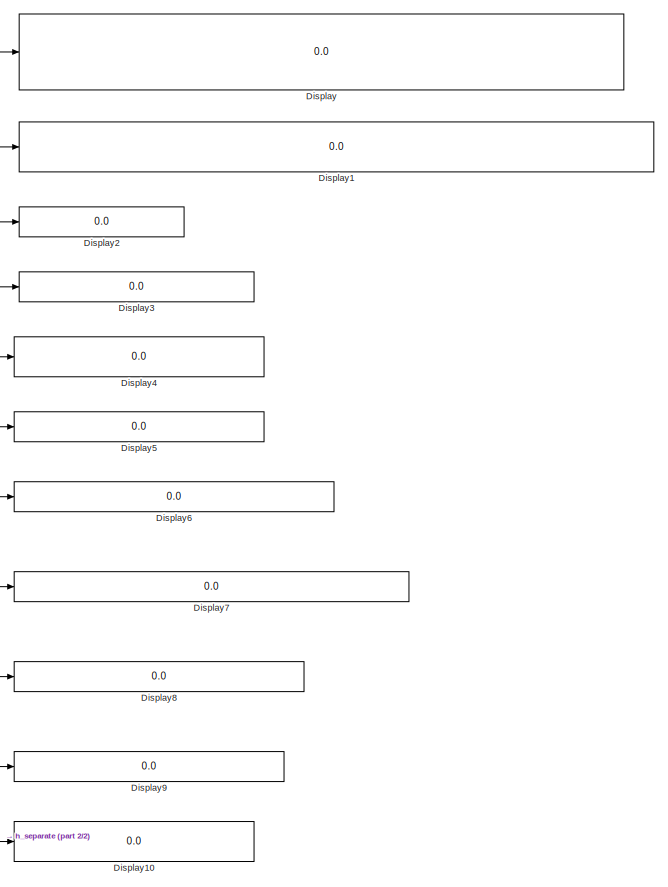
[diagram: root canvas - part 1/2, top right region]
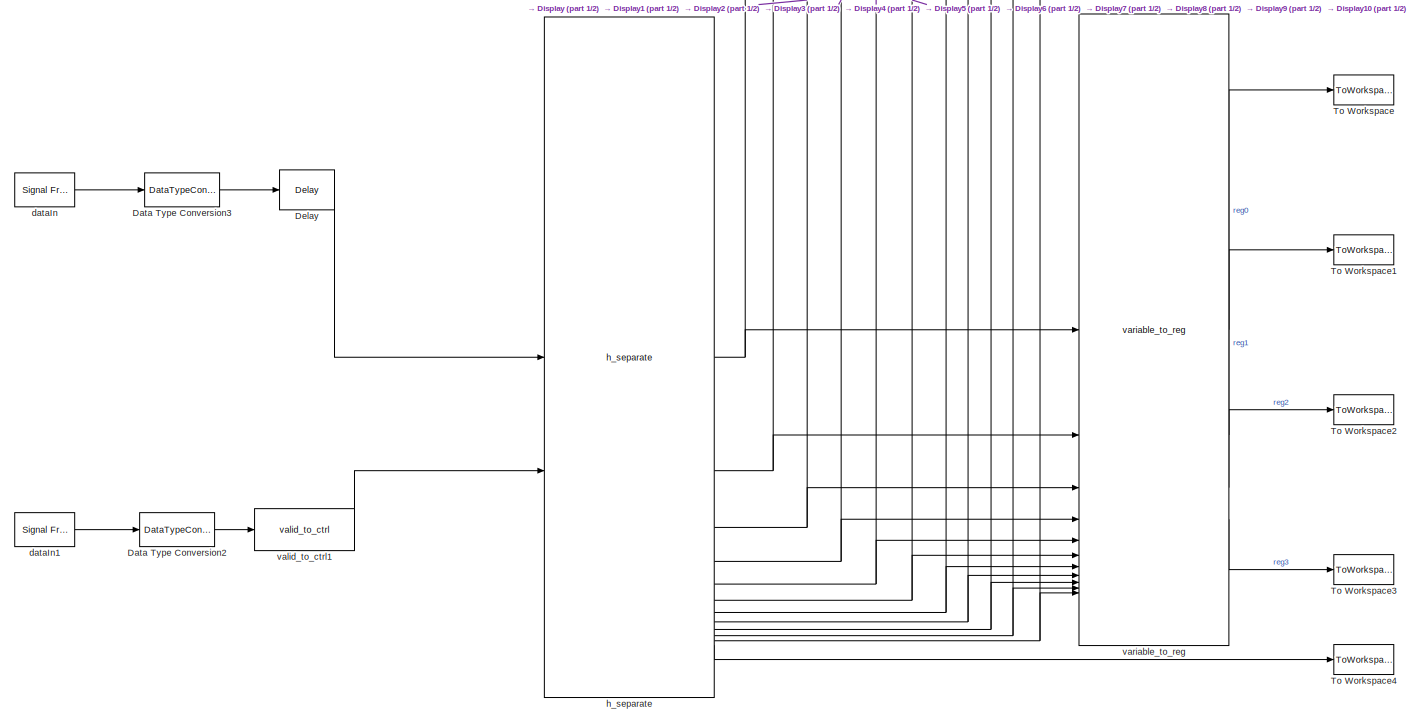
[diagram: root canvas - part 2/2, full width, bottom band]
MODEL slx_5e4bed5eb5f7
KIND model
CONFIG AbsTol = auto
CONFIG EnableMultiTasking = off
CONFIG FixedStep = auto
CONFIG MaxStep = auto
CONFIG MinStep = auto
CONFIG RelTol = 1e-3
CONFIG SampleTimeConstraint = Unconstrained
CONFIG SolverName = VariableStepAuto
CONFIG StartTime = 0.0
CONFIG StopTime = stopTime
BLOCK [DataTypeConversion] Data Type Conversion2
  OutDataTypeStr = boolean
  RndMeth = Floor
  SaturateOnIntegerOverflow = off
BLOCK [DataTypeConversion] Data Type Conversion3
  OutDataTypeStr = boolean
  RndMeth = Floor
  SaturateOnIntegerOverflow = off
BLOCK [Delay] Delay
  DelayLength = 1
  InitialCondition = 0
  InputPortMap = u0
  UseCircularBuffer = on
  UserDataPersistent = on
BLOCK [Display] Display
  Decimation = 1
BLOCK [Display] Display1
  Decimation = 1
BLOCK [Display] Display10
  Decimation = 1
BLOCK [Display] Display2
  Decimation = 1
BLOCK [Display] Display3
  Decimation = 1
BLOCK [Display] Display4
  Decimation = 1
BLOCK [Display] Display5
  Decimation = 1
BLOCK [Display] Display6
  Decimation = 1
BLOCK [Display] Display7
  Decimation = 1
BLOCK [Display] Display8
  Decimation = 1
BLOCK [Display] Display9
  Decimation = 1
BLOCK [ToWorkspace] To Workspace
  MaxDataPoints = inf
  SampleTime = 4/CONST.fPHY
  Save2DSignal = 2-D array (concatenate along first dimension)
  VariableName = reg0Out
BLOCK [ToWorkspace] To Workspace1
  MaxDataPoints = inf
  SampleTime = 4/CONST.fPHY
  Save2DSignal = 2-D array (concatenate along first dimension)
  VariableName = reg1Out
BLOCK [ToWorkspace] To Workspace2
  MaxDataPoints = inf
  SampleTime = 4/CONST.fPHY
  Save2DSignal = 2-D array (concatenate along first dimension)
  VariableName = reg2Out
BLOCK [ToWorkspace] To Workspace3
  MaxDataPoints = inf
  SampleTime = 4/CONST.fPHY
  Save2DSignal = 2-D array (concatenate along first dimension)
  VariableName = reg3Out
BLOCK [ToWorkspace] To Workspace4
  MaxDataPoints = inf
  SampleTime = 4/CONST.fPHY
  Save2DSignal = 2-D array (concatenate along first dimension)
  VariableName = endOut
BLOCK [Reference] dataIn  REF=dspsrcs4/Signal From
Workspace
  SourceBlock = dspsrcs4/Signal From\nWorkspace
  SourceType = Signal From Workspace
BLOCK [Reference] dataIn1  REF=dspsrcs4/Signal From
Workspace
  SourceBlock = dspsrcs4/Signal From\nWorkspace
  SourceType = Signal From Workspace
BLOCK [Reference] h_separate  REF=HDL_ieee_8021513/h_separate
  SourceBlock = HDL_ieee_8021513/h_separate
  SourceProductName = HDL IEEE 8021513
  SourceType = SubSystem
BLOCK [Reference] valid_to_ctrl1  REF=HDL_ieee_8021513/valid_to_ctrl
  SourceBlock = HDL_ieee_8021513/valid_to_ctrl
  SourceProductName = HDL IEEE 8021513
  SourceType = SubSystem
BLOCK [Reference] variable_to_reg  REF=HDL_ieee_8021513/variable_to_reg
  SourceBlock = HDL_ieee_8021513/variable_to_reg
  SourceProductName = HDL IEEE 8021513
  SourceType = SubSystem
LINE Data Type Conversion2:1 -> valid_to_ctrl1:1
LINE Data Type Conversion3:1 -> Delay:1
LINE Delay:1 -> h_separate:1
LINE dataIn1:1 -> Data Type Conversion2:1
LINE dataIn:1 -> Data Type Conversion3:1
NET h_separate:1 -> Display:1, variable_to_reg:1
NET h_separate:10 -> Display9:1, variable_to_reg:10
NET h_separate:11 -> Display10:1, variable_to_reg:11
LINE h_separate:12 -> To Workspace4:1
NET h_separate:2 -> Display1:1, variable_to_reg:2
NET h_separate:3 -> Display2:1, variable_to_reg:3
NET h_separate:4 -> Display3:1, variable_to_reg:4
NET h_separate:5 -> Display4:1, variable_to_reg:5
NET h_separate:6 -> Display5:1, variable_to_reg:6
NET h_separate:7 -> Display6:1, variable_to_reg:7
NET h_separate:8 -> Display7:1, variable_to_reg:8
NET h_separate:9 -> Display8:1, variable_to_reg:9
LINE valid_to_ctrl1:1 -> h_separate:2
LINE variable_to_reg:1 -> To Workspace:1
LINE variable_to_reg:2 -> To Workspace1:1
LINE variable_to_reg:3 -> To Workspace2:1
LINE variable_to_reg:4 -> To Workspace3:1
note: NET lines group one-source signal fan-out (src -> all destinations, sorted); 1:1 wires keep LINE
